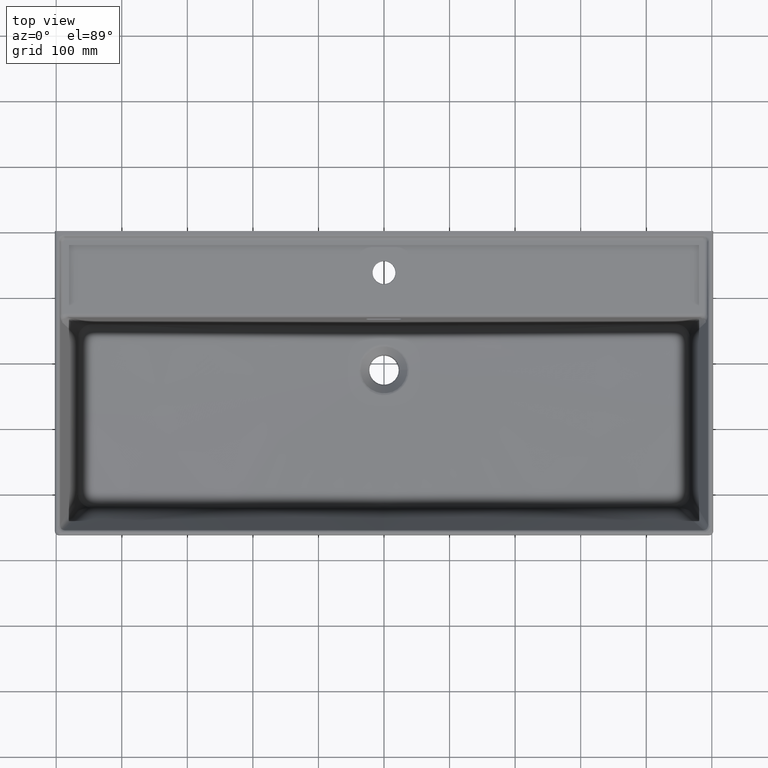
[diagram: clean part render]
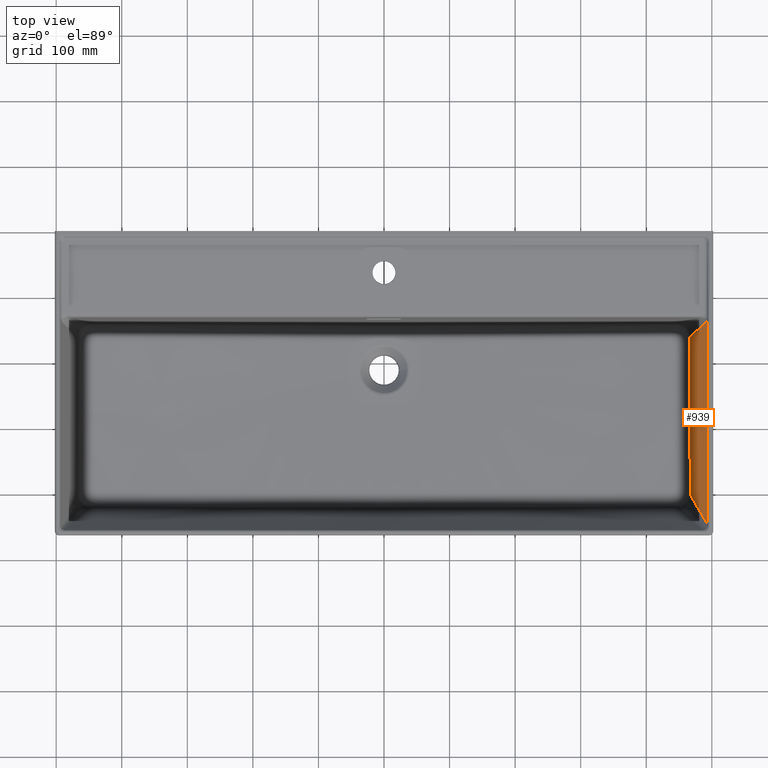
[diagram: same view with one face highlighted and labeled with its STEP entity id]
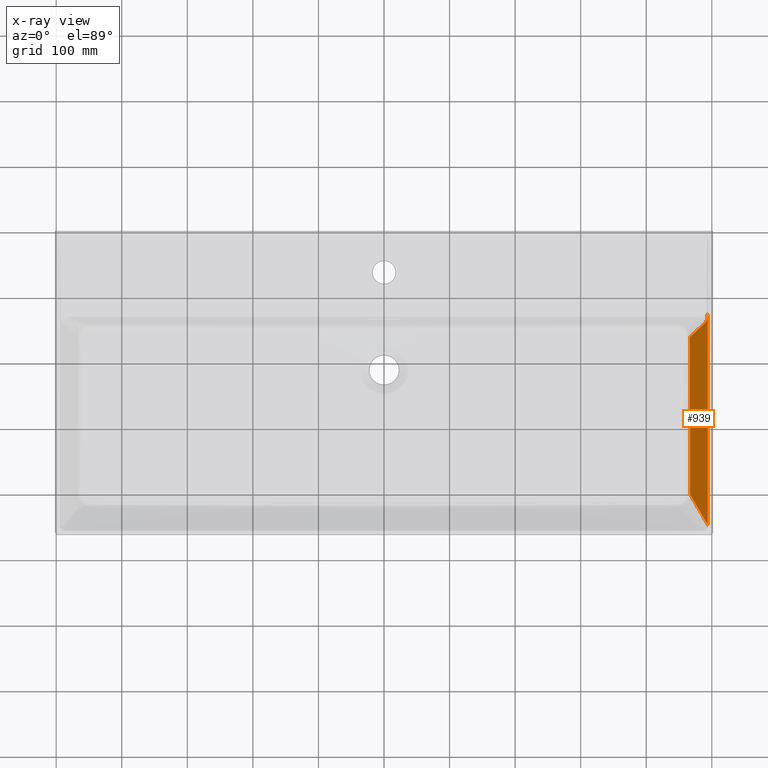
[diagram: x-ray of the same camera — body ghosted, the highlighted face saturated]
A machine part, top view. The second image highlights one B-rep face of the part: STEP entity #939.
The next image is the same camera in x-ray: the body ghosted, the highlighted face saturated — about 0% of this face is hidden behind the body in this view.
In plain terms, the highlighted planar face has unit normal (-0.9397, 0, 0.342).
Its self-contained STEP definition (entity closure, byte-faithful):
#434=PLANE('',#5758);
#451=(
BOUNDED_CURVE()
B_SPLINE_CURVE(3,(#10850,#10851,#10852,#10853,#10854,#10855,#10856,#10857,
#10858,#10859,#10860,#10861,#10862,#10863,#10864,#10865),.UNSPECIFIED.,
 .F.,.F.)
B_SPLINE_CURVE_WITH_KNOTS((4,3,3,3,3,4),(0.,0.55473971057994,0.606455386694711,
0.868818462231571,0.895054769785256,1.),.UNSPECIFIED.)
CURVE()
GEOMETRIC_REPRESENTATION_ITEM()
RATIONAL_B_SPLINE_CURVE((1.,1.,1.,1.,1.,1.,1.,1.,1.,1.,1.,1.,1.,1.,1.,1.))
REPRESENTATION_ITEM('')
);
#452=(
BOUNDED_CURVE()
B_SPLINE_CURVE(3,(#11361,#11362,#11363,#11364),.UNSPECIFIED.,.F.,.F.)
B_SPLINE_CURVE_WITH_KNOTS((4,4),(0.,1.),.UNSPECIFIED.)
CURVE()
GEOMETRIC_REPRESENTATION_ITEM()
RATIONAL_B_SPLINE_CURVE((1.,1.,1.,1.))
REPRESENTATION_ITEM('')
);
#592=LINE('',#11366,#729);
#593=LINE('',#11368,#730);
#729=VECTOR('',#6428,1.);
#730=VECTOR('',#6429,1.);
#939=ADVANCED_FACE('',(#1297),#434,.T.);
#1297=FACE_OUTER_BOUND('',#1684,.T.);
#1684=EDGE_LOOP('',(#2792,#2793,#2794,#2795,#2796,#2797));
#2792=ORIENTED_EDGE('',*,*,#4798,.F.);
#2793=ORIENTED_EDGE('',*,*,#4842,.F.);
#2794=ORIENTED_EDGE('',*,*,#4843,.F.);
#2795=ORIENTED_EDGE('',*,*,#4844,.F.);
#2796=ORIENTED_EDGE('',*,*,#4845,.F.);
#2797=ORIENTED_EDGE('',*,*,#4846,.F.);
#4249=VERTEX_POINT('',#10849);
#4250=VERTEX_POINT('',#10866);
#4289=VERTEX_POINT('',#11360);
#4290=VERTEX_POINT('',#11365);
#4291=VERTEX_POINT('',#11367);
#4292=VERTEX_POINT('',#11369);
#4798=EDGE_CURVE('',#4249,#4250,#451,.T.);
#4842=EDGE_CURVE('',#4289,#4249,#5500,.T.);
#4843=EDGE_CURVE('',#4290,#4289,#452,.T.);
#4844=EDGE_CURVE('',#4291,#4290,#592,.T.);
#4845=EDGE_CURVE('',#4292,#4291,#593,.T.);
#4846=EDGE_CURVE('',#4250,#4292,#5501,.T.);
#5500=B_SPLINE_CURVE_WITH_KNOTS('',3,(#11356,#11357,#11358,#11359),
 .UNSPECIFIED.,.F.,.F.,(4,4),(0.,1.),.UNSPECIFIED.);
#5501=B_SPLINE_CURVE_WITH_KNOTS('',3,(#11370,#11371,#11372,#11373,#11374,
#11375,#11376,#11377),.UNSPECIFIED.,.F.,.F.,(4,2,2,4),(0.,0.25,0.5,1.),
 .UNSPECIFIED.);
#5758=AXIS2_PLACEMENT_3D('',#11378,#6430,#6431);
#6428=DIRECTION('',(0.,-1.,0.));
#6429=DIRECTION('',(0.00635202830895263,0.99982752389372,0.0174520543465839));
#6430=DIRECTION('',(-0.939692620785908,0.,0.342020143325669));
#6431=DIRECTION('',(0.342020143325669,0.,0.939692620785909));
#10849=CARTESIAN_POINT('',(466.543921313753,-160.431091576967,-62.6486776648021));
#10850=CARTESIAN_POINT('',(401.847012141771,-217.215031147367,-240.401974723327));
#10851=CARTESIAN_POINT('',(421.152658701471,-200.270625585435,-187.360146732579));
#10852=CARTESIAN_POINT('',(440.458305261172,-183.326220023503,-134.31831874183));
#10853=CARTESIAN_POINT('',(459.763951820873,-166.381814461571,-81.2764907510809));
#10854=CARTESIAN_POINT('',(461.563723039025,-164.8021702189,-76.331659969024));
#10855=CARTESIAN_POINT('',(463.363494257177,-163.22252597623,-71.3868291869672));
#10856=CARTESIAN_POINT('',(465.163265475329,-161.64288173356,-66.4419984049104));
#10857=CARTESIAN_POINT('',(474.293833758128,-153.629057823739,-41.35596822113));
#10858=CARTESIAN_POINT('',(483.424402040928,-145.615233913918,-16.2699380373497));
#10859=CARTESIAN_POINT('',(492.554970323727,-137.601410004097,8.8160921464307));
#10860=CARTESIAN_POINT('',(493.468027152007,-136.800027613115,11.3246951648087));
#10861=CARTESIAN_POINT('',(494.381083980287,-135.998645222133,13.8332981831866));
#10862=CARTESIAN_POINT('',(495.294140808567,-135.197262831151,16.3419012015646));
#10863=CARTESIAN_POINT('',(498.946368121686,-131.991733267223,26.3763132750768));
#10864=CARTESIAN_POINT('',(502.598595434806,-128.786203703295,36.4107253485889));
#10865=CARTESIAN_POINT('',(506.250822747925,-125.580674139367,46.445137422101));
#10866=CARTESIAN_POINT('',(490.646397518967,-139.276548495228,3.5723314619674));
#11356=CARTESIAN_POINT('',(467.000538149382,-400.706522456907,-61.3941332195661));
#11357=CARTESIAN_POINT('',(466.604312434335,-320.618676447893,-62.4827544246671));
#11358=CARTESIAN_POINT('',(466.432773983969,-240.527180230621,-62.9540524436159));
#11359=CARTESIAN_POINT('',(466.543921313752,-160.431091576967,-62.6486776648022));
#11360=CARTESIAN_POINT('',(467.000538400876,-400.706521237444,-61.3941325285935));
#11361=CARTESIAN_POINT('',(493.847788468483,-448.108740858132,12.3680808066089));
#11362=CARTESIAN_POINT('',(484.896928248459,-432.283012018663,-12.2242055326023));
#11363=CARTESIAN_POINT('',(475.947710614648,-416.480493045377,-36.8119789032828));
#11364=CARTESIAN_POINT('',(467.000538652369,-400.706520017982,-61.3941318376204));
#11365=CARTESIAN_POINT('',(493.847788426025,-448.108741063419,12.3680806899559));
#11366=CARTESIAN_POINT('',(493.847788383567,0.,12.3680805733027));
#11367=CARTESIAN_POINT('',(493.847788383566,-106.673014523999,12.3680805733027));
#11368=CARTESIAN_POINT('',(494.416791453418,-17.1102949096278,13.9314036593193));
#11369=CARTESIAN_POINT('',(493.720306853712,-126.738973952613,12.0178279486293));
#11370=CARTESIAN_POINT('',(490.646397518967,-139.276548495229,3.5723314619676));
#11371=CARTESIAN_POINT('',(491.063408563635,-138.684038142027,4.71805989085441));
#11372=CARTESIAN_POINT('',(491.491170852935,-138.049933132939,5.8933271216021));
#11373=CARTESIAN_POINT('',(492.241680097334,-136.444415505721,7.95533432367862));
#11374=CARTESIAN_POINT('',(492.576248970059,-135.468802619762,8.87455474674472));
#11375=CARTESIAN_POINT('',(493.398272889457,-132.163326468743,11.1330469035409));
#11376=CARTESIAN_POINT('',(493.702840318409,-129.488256841981,11.9698390372893));
#11377=CARTESIAN_POINT('',(493.720306853712,-126.738973952613,12.0178279486292));
#11378=CARTESIAN_POINT('',(494.805728713871,0.,15.));